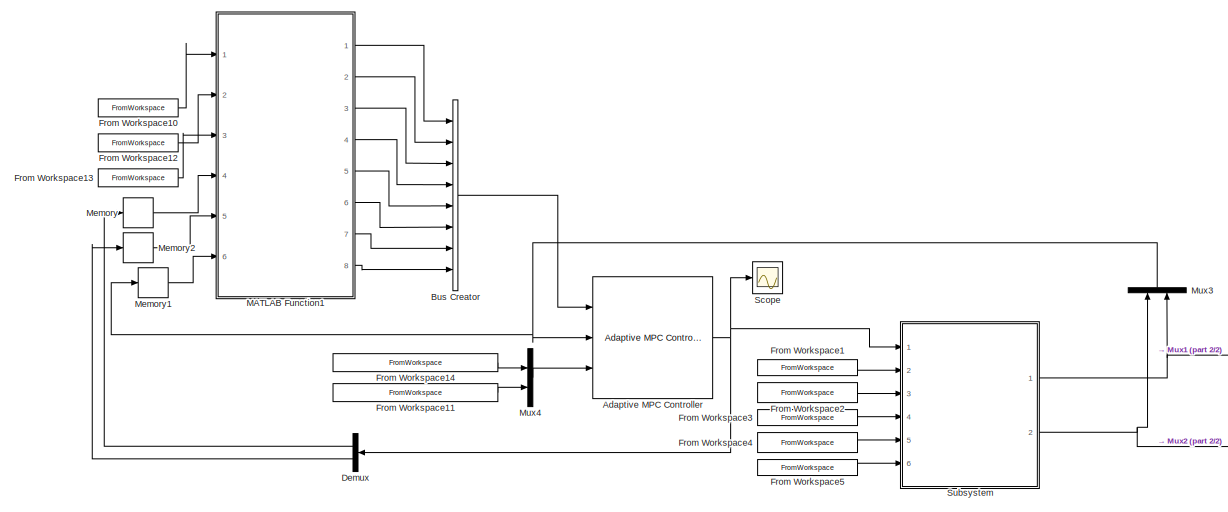
[diagram: root canvas - part 1/2, most of the canvas]
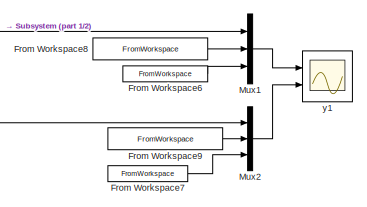
[diagram: root canvas - part 2/2, bottom right region]
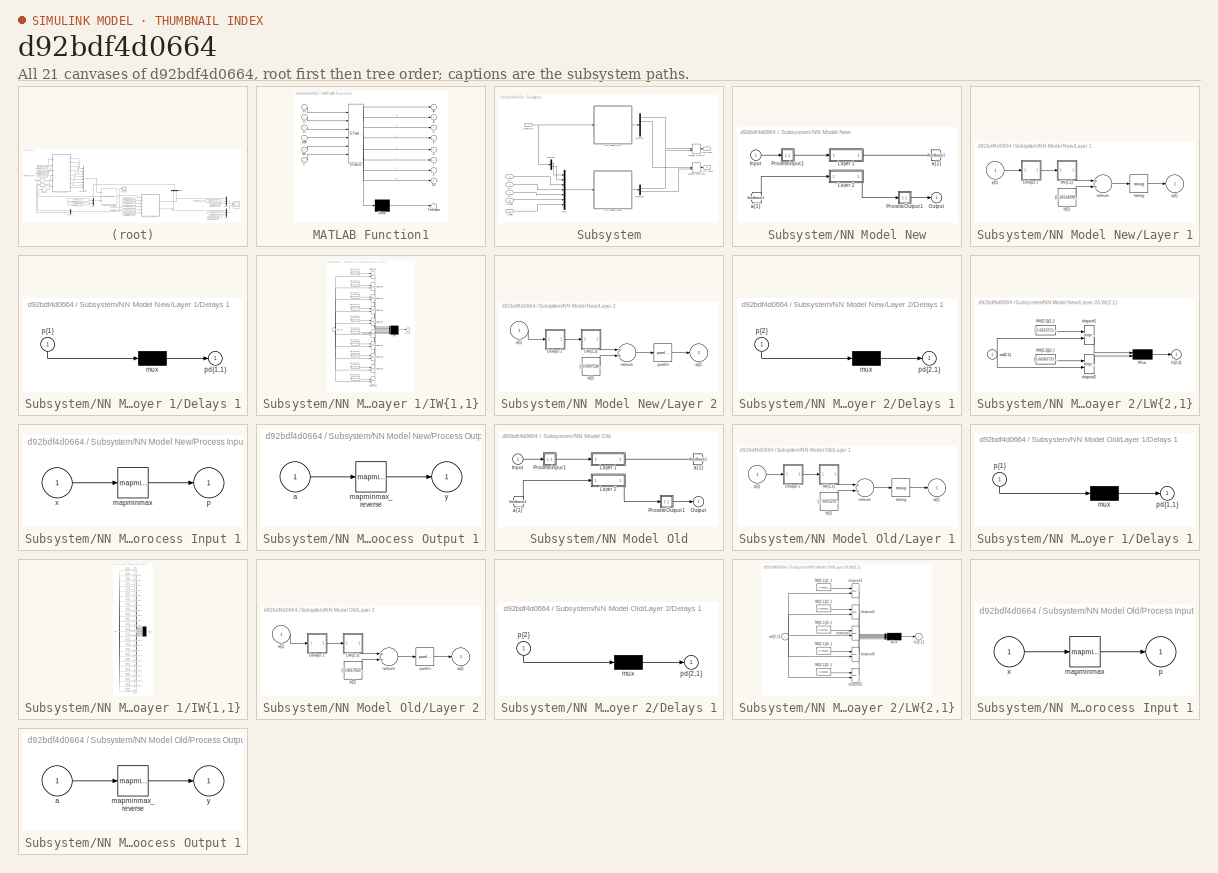
[diagram: thumbnail index - all 21 canvases of the model, root first then tree order]
MODEL slx_d92bdf4d0664
KIND model
CONFIG AbsTol = auto
CONFIG EnableMultiTasking = off
CONFIG FixedStep = Time(2)
CONFIG MaxStep = auto
CONFIG MinStep = auto
CONFIG RelTol = 1e-3
CONFIG SampleTimeConstraint = Unconstrained
CONFIG Solver = FixedStepAuto
CONFIG SolverName = FixedStepAuto
CONFIG StartTime = 0.0
CONFIG StopTime = Time(end)
BLOCK [Reference] Adaptive MPC Controller  REF=mpclib/Adaptive MPC Controller  (lib defined in mdl_ae329e0e0455)
  Ports = [3, 1]
  SCDEnableBlockLinearizationSpecification = on
  SourceBlock = mpclib/Adaptive MPC Controller
  SourceProductBaseCode = MP
  SourceProductName = Model Predictive Control Toolbox
  SourceType = Adaptive MPC
BLOCK [BusCreator] Bus Creator
  DisplayOption = bar
  InheritFromInputs = on
  Inputs = 8
  Ports = [8, 1]
BLOCK [Demux] Demux
  DisplayOption = bar
  Outputs = 2
  Ports = [1, 2]
BLOCK [FromWorkspace] From Workspace1
  SampleTime = 0
  VariableName = [Time Vx]
  ZeroCross = on
BLOCK [FromWorkspace] From Workspace10
  SampleTime = 0
  VariableName = [Time Vx]
  ZeroCross = on
BLOCK [FromWorkspace] From Workspace11
  SampleTime = 0
  VariableName = [Time YawRateRef_Filtered]
  ZeroCross = on
BLOCK [FromWorkspace] From Workspace12
  SampleTime = 0
  VariableName = [Time mean_Cf_fit]
  ZeroCross = on
BLOCK [FromWorkspace] From Workspace13
  SampleTime = 0
  VariableName = [Time mean_Cr_fit]
  ZeroCross = on
BLOCK [FromWorkspace] From Workspace14
  SampleTime = 0
  VariableName = [Time BetaRef_Filtered]
  ZeroCross = on
BLOCK [FromWorkspace] From Workspace2
  SampleTime = 0
  VariableName = [Time Fyf]
  ZeroCross = on
BLOCK [FromWorkspace] From Workspace3
  SampleTime = 0
  VariableName = [Time Fyr]
  ZeroCross = on
BLOCK [FromWorkspace] From Workspace4
  SampleTime = 0
  VariableName = [Time Alphaf]
  ZeroCross = on
BLOCK [FromWorkspace] From Workspace5
  SampleTime = 0
  VariableName = [Time Alphar]
  ZeroCross = on
BLOCK [FromWorkspace] From Workspace6
  SampleTime = 0
  VariableName = [Time YawR]
  ZeroCross = on
BLOCK [FromWorkspace] From Workspace7
  SampleTime = 0
  VariableName = [Time Beta]
  ZeroCross = on
BLOCK [FromWorkspace] From Workspace8
  SampleTime = 0
  VariableName = [Time YawRateRef_Filtered]
  ZeroCross = on
BLOCK [FromWorkspace] From Workspace9
  SampleTime = 0
  VariableName = [Time BetaRef_Filtered]
  ZeroCross = on
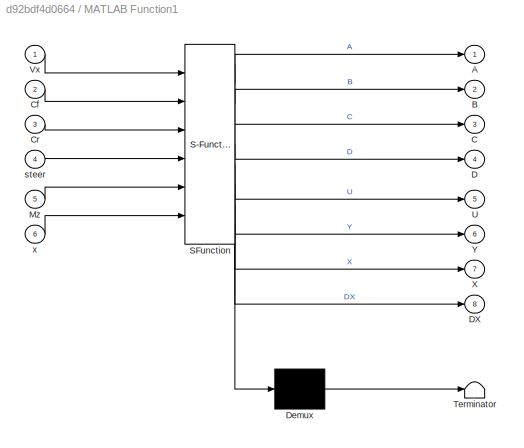
BLOCK [SubSystem] MATLAB Function1
  ErrorFcn = Stateflow.Translate.translate
  PermitHierarchicalResolution = ExplicitOnly
  Ports = [6, 8]
  RequestExecContextInheritance = off
  SFBlockType = MATLAB Function
  TreatAsAtomicUnit = on
BLOCK [Demux] MATLAB Function1/ Demux 
  Outputs = 1
  Ports = [1, 1]
BLOCK [S-Function] MATLAB Function1/ SFunction 
  EnableBusSupport = on
  FunctionName = sf_sfun
  PortCounts = [6 9]
  Ports = [6, 9]
  SFcnIsStateOwnerBlock = off
  SFunctionDeploymentMode = off
  Tag = Stateflow S-Function 2
BLOCK [Terminator] MATLAB Function1/ Terminator 
BLOCK [Outport] MATLAB Function1/A
  IconDisplay = Port number
  VectorParamsAs1DForOutWhenUnconnected = off
BLOCK [Outport] MATLAB Function1/B
  IconDisplay = Port number
  Port = 2
  VectorParamsAs1DForOutWhenUnconnected = off
BLOCK [Outport] MATLAB Function1/C
  IconDisplay = Port number
  Port = 3
  VectorParamsAs1DForOutWhenUnconnected = off
BLOCK [Inport] MATLAB Function1/Cf
  IconDisplay = Port number
  Port = 2
BLOCK [Inport] MATLAB Function1/Cr
  IconDisplay = Port number
  Port = 3
BLOCK [Outport] MATLAB Function1/D
  IconDisplay = Port number
  Port = 4
  VectorParamsAs1DForOutWhenUnconnected = off
BLOCK [Outport] MATLAB Function1/DX
  IconDisplay = Port number
  Port = 8
  VectorParamsAs1DForOutWhenUnconnected = off
BLOCK [Inport] MATLAB Function1/Mz
  IconDisplay = Port number
  Port = 5
BLOCK [Outport] MATLAB Function1/U
  IconDisplay = Port number
  Port = 5
  VectorParamsAs1DForOutWhenUnconnected = off
BLOCK [Inport] MATLAB Function1/Vx
  IconDisplay = Port number
BLOCK [Outport] MATLAB Function1/X
  IconDisplay = Port number
  Port = 7
  VectorParamsAs1DForOutWhenUnconnected = off
BLOCK [Outport] MATLAB Function1/Y
  IconDisplay = Port number
  Port = 6
  VectorParamsAs1DForOutWhenUnconnected = off
BLOCK [Inport] MATLAB Function1/steer
  IconDisplay = Port number
  Port = 4
BLOCK [Inport] MATLAB Function1/x
  IconDisplay = Port number
  Port = 6
BLOCK [Memory] Memory
BLOCK [Memory] Memory1
BLOCK [Memory] Memory2
BLOCK [Mux] Mux1
  DisplayOption = bar
  Inputs = 3
  Ports = [3, 1]
BLOCK [Mux] Mux2
  DisplayOption = bar
  Inputs = 3
  Ports = [3, 1]
BLOCK [Mux] Mux3
  DisplayOption = bar
  Inputs = 2
  Ports = [2, 1]
BLOCK [Mux] Mux4
  DisplayOption = bar
  Inputs = 2
  Ports = [2, 1]
BLOCK [Scope] Scope
  Floating = off
  NumInputPorts = 1
  Ports = [1]
  ScopeSpecificationString = Simulink.scopes.TimeScopeBlockCfg('CurrentConfiguration', extmgr.ConfigurationSet(extmgr.Configuration('Core','General UI',true),extmgr.Configuration('Core','Source UI',true),extmgr.Configuration('Sources','WiredSimulink',true,'DataLoggingVariableName','ScopeData1'),extmgr.Configuration('Visuals','Time Domain',true,'SerializedDisplays',{struct('MinYLimReal','-0.48048','MaxYLimReal','0.6308','YLabe...<+1430ch>
BLOCK [SubSystem] Subsystem
  Ports = [6, 2]
  RequestExecContextInheritance = off
BLOCK [Inport] Subsystem/Alphaf
  IconDisplay = Port number
  Port = 5
BLOCK [Inport] Subsystem/Alphar
  IconDisplay = Port number
  Port = 6
BLOCK [Demux] Subsystem/Demux
  DisplayOption = bar
  Outputs = 5
  Ports = [1, 5]
BLOCK [Demux] Subsystem/Demux1
  DisplayOption = bar
  Outputs = 2
  Ports = [1, 2]
BLOCK [Demux] Subsystem/Demux2
  DisplayOption = bar
  Outputs = 2
  Ports = [1, 2]
BLOCK [Inport] Subsystem/Fyf
  IconDisplay = Port number
  Port = 3
BLOCK [Inport] Subsystem/Fyr
  IconDisplay = Port number
  Port = 4
BLOCK [ManualSwitch] Subsystem/Manual Switch
BLOCK [ManualSwitch] Subsystem/Manual Switch1
BLOCK [Mux] Subsystem/Mux
  DisplayOption = bar
  Inputs = 7
  Ports = [7, 1]
BLOCK [SubSystem] Subsystem/NN Model New
  Ports = [1, 1]
  RequestExecContextInheritance = off
BLOCK [From] Subsystem/NN Model New/ a{1} 
  GotoTag = feedback1
BLOCK [Inport] Subsystem/NN Model New/Input
  IconDisplay = Port number
  PortDimensions = 7
BLOCK [SubSystem] Subsystem/NN Model New/Layer 1
  Ports = [1, 1]
  RequestExecContextInheritance = off
BLOCK [SubSystem] Subsystem/NN Model New/Layer 1/Delays 1
  Ports = [1, 1]
  RequestExecContextInheritance = off
BLOCK [Mux] Subsystem/NN Model New/Layer 1/Delays 1/mux
  Inputs = 1
  Ports = [1, 1]
BLOCK [Outport] Subsystem/NN Model New/Layer 1/Delays 1/pd{1,1}
  IconDisplay = Port number
BLOCK [Inport] Subsystem/NN Model New/Layer 1/Delays 1/p{1}
  IconDisplay = Port number
  PortDimensions = 7
BLOCK [SubSystem] Subsystem/NN Model New/Layer 1/IW{1,1}
  Ports = [1, 1]
  RequestExecContextInheritance = off
BLOCK [Constant] Subsystem/NN Model New/Layer 1/IW{1,1}/IW{1,1}(1,:)'
  Value = [0.57875178995764076095298378277220763266086578369140625;-0.65630868334226721838575713263708166778087615966796875;-1.2994685582603595630502013591467402875423431396484375;3.87704318068960152032786936615593731403350830078125;-0.5547300482773509511247311820625327527523040771484375;-0.87913700827856866570897409474127925932407379150390625;2.057844422784890436872728969319723546504974365234375]
BLOCK [Constant] Subsystem/NN Model New/Layer 1/IW{1,1}/IW{1,1}(10,:)'
  Value = [2.915197746859177652112293799291364848613739013671875;0.74173008508364646207411396972020156681537628173828125;0.28518025943380720388375948459724895656108856201171875;-0.36735078620961869599881310932687483727931976318359375;-0.69412743396490139691223930640262551605701446533203125;3.549207085727584143342028255574405193328857421875;-0.79018694164812608438097640828345902264118194580078125]
BLOCK [Constant] Subsystem/NN Model New/Layer 1/IW{1,1}/IW{1,1}(2,:)'
  Value = [-4.27333180748482188704429063363932073116302490234375;-0.844574968020410654645502290804870426654815673828125;-0.401099897634301816307100807534880004823207855224609375;0.388871861243340555258640733882202766835689544677734375;0.8075942119173777911100842175073921680450439453125;-5.55213609546480757472863842849619686603546142578125;1.8352382830919988787599095303448848426342010498046875]
BLOCK [Constant] Subsystem/NN Model New/Layer 1/IW{1,1}/IW{1,1}(3,:)'
  Value = [-0.252728931976545390103439103768323548138141632080078125;-2.296269227869625506599504660698585212230682373046875;1.3818309950099589844541014826972968876361846923828125;-1.7894777478048331520454894416616298258304595947265625;2.772225457176373364376331664971075952053070068359375;-1.30194180523479285938037719461135566234588623046875;-1.8582294302470836466767423189594410359859466552734375]
BLOCK [Constant] Subsystem/NN Model New/Layer 1/IW{1,1}/IW{1,1}(4,:)'
  Value = [0.003943734788484923141360649623265999252907931804656982421875;-0.09948304740510270638420564637272036634385585784912109375;0.1385985115972757364399825519285514019429683685302734375;-0.370575962454542440216442855671630240976810455322265625;0.16793236865429495008328331095981411635875701904296875;-0.0178347555979887807675599020740264677442610263824462890625;-0.586265378292065486576234434323851019144...<+14ch>
BLOCK [Constant] Subsystem/NN Model New/Layer 1/IW{1,1}/IW{1,1}(5,:)'
  Value = [-0.333572004754119133540513075786293484270572662353515625;0.10537472276525884640197006092421361245214939117431640625;-0.09307081210022806472270673339153290726244449615478515625;0.3526557857481564806079177287756465375423431396484375;-0.194320487847779055368135914250160567462444305419921875;-0.48890719831174844767218701235833577811717987060546875;0.13600826737891319462292472053377423435449600219726...<+5ch>
BLOCK [Constant] Subsystem/NN Model New/Layer 1/IW{1,1}/IW{1,1}(6,:)'
  Value = [-1.11647991296482107514975723461247980594635009765625;-0.08032287663896238438798746983593446202576160430908203125;0.5148581113880765780521642227540723979473114013671875;-0.00185679249259250596891523965581427546567283570766448974609375;0.0907984791278646508061456188443116843700408935546875;-1.6210522982891111265502104288316331803798675537109375;0.891231200746553153813067638111533597111701965332031...<+3ch>
BLOCK [Constant] Subsystem/NN Model New/Layer 1/IW{1,1}/IW{1,1}(7,:)'
  Value = [0.74344765048595229384176263920380733907222747802734375;-0.06354036189715682458878376337452209554612636566162109375;0.60780706129761197242800108142546378076076507568359375;0.0744083165700281934373805370341870002448558807373046875;-0.007047693513280267087195429809298730106092989444732666015625;1.28197860459582724246274665347300469875335693359375;-0.9577871594165492385997140445397235453128814697265...<+4ch>
BLOCK [Constant] Subsystem/NN Model New/Layer 1/IW{1,1}/IW{1,1}(8,:)'
  Value = [-0.268834658866021258827316842143773101270198822021484375;0.0563209258265555678946157058817334473133087158203125;0.09632954181942070259747623595103505067527294158935546875;0.111311757265155131246814335099770687520503997802734375;-0.138966451382288636029471717847627587616443634033203125;-0.39893491452245566364354090183041989803314208984375;-0.57581612654112357407854005941771902143955230712890625]
BLOCK [Constant] Subsystem/NN Model New/Layer 1/IW{1,1}/IW{1,1}(9,:)'
  Value = [0.307362014685282847192837607508408837020397186279296875;-0.271858509060633135590023812255822122097015380859375;-1.0698258344833180277788642342784442007541656494140625;-0.453602785951677744957777349554817192256450653076171875;0.48595721493864996176625936641357839107513427734375;0.42369293339924052332889914396218955516815185546875;0.591421321816716361041699201450683176517486572265625]
BLOCK [Mux] Subsystem/NN Model New/Layer 1/IW{1,1}/Mux
  Inputs = 10
  Ports = [10, 1]
BLOCK [Reference] Subsystem/NN Model New/Layer 1/IW{1,1}/dotprod1  REF=neural/Weight Functions/dotprod
  Ports = [2, 1]
  SourceBlock = neural/Weight Functions/dotprod
  SourceProductBaseCode = NN
  SourceProductName = Deep Learning Toolbox
  SourceType = DOTPROD
BLOCK [Reference] Subsystem/NN Model New/Layer 1/IW{1,1}/dotprod10  REF=neural/Weight Functions/dotprod
  Ports = [2, 1]
  SourceBlock = neural/Weight Functions/dotprod
  SourceProductBaseCode = NN
  SourceProductName = Deep Learning Toolbox
  SourceType = DOTPROD
BLOCK [Reference] Subsystem/NN Model New/Layer 1/IW{1,1}/dotprod2  REF=neural/Weight Functions/dotprod
  Ports = [2, 1]
  SourceBlock = neural/Weight Functions/dotprod
  SourceProductBaseCode = NN
  SourceProductName = Deep Learning Toolbox
  SourceType = DOTPROD
BLOCK [Reference] Subsystem/NN Model New/Layer 1/IW{1,1}/dotprod3  REF=neural/Weight Functions/dotprod
  Ports = [2, 1]
  SourceBlock = neural/Weight Functions/dotprod
  SourceProductBaseCode = NN
  SourceProductName = Deep Learning Toolbox
  SourceType = DOTPROD
BLOCK [Reference] Subsystem/NN Model New/Layer 1/IW{1,1}/dotprod4  REF=neural/Weight Functions/dotprod
  Ports = [2, 1]
  SourceBlock = neural/Weight Functions/dotprod
  SourceProductBaseCode = NN
  SourceProductName = Deep Learning Toolbox
  SourceType = DOTPROD
BLOCK [Reference] Subsystem/NN Model New/Layer 1/IW{1,1}/dotprod5  REF=neural/Weight Functions/dotprod
  Ports = [2, 1]
  SourceBlock = neural/Weight Functions/dotprod
  SourceProductBaseCode = NN
  SourceProductName = Deep Learning Toolbox
  SourceType = DOTPROD
BLOCK [Reference] Subsystem/NN Model New/Layer 1/IW{1,1}/dotprod6  REF=neural/Weight Functions/dotprod
  Ports = [2, 1]
  SourceBlock = neural/Weight Functions/dotprod
  SourceProductBaseCode = NN
  SourceProductName = Deep Learning Toolbox
  SourceType = DOTPROD
BLOCK [Reference] Subsystem/NN Model New/Layer 1/IW{1,1}/dotprod7  REF=neural/Weight Functions/dotprod
  Ports = [2, 1]
  SourceBlock = neural/Weight Functions/dotprod
  SourceProductBaseCode = NN
  SourceProductName = Deep Learning Toolbox
  SourceType = DOTPROD
BLOCK [Reference] Subsystem/NN Model New/Layer 1/IW{1,1}/dotprod8  REF=neural/Weight Functions/dotprod
  Ports = [2, 1]
  SourceBlock = neural/Weight Functions/dotprod
  SourceProductBaseCode = NN
  SourceProductName = Deep Learning Toolbox
  SourceType = DOTPROD
BLOCK [Reference] Subsystem/NN Model New/Layer 1/IW{1,1}/dotprod9  REF=neural/Weight Functions/dotprod
  Ports = [2, 1]
  SourceBlock = neural/Weight Functions/dotprod
  SourceProductBaseCode = NN
  SourceProductName = Deep Learning Toolbox
  SourceType = DOTPROD
BLOCK [Outport] Subsystem/NN Model New/Layer 1/IW{1,1}/iz{1,1}
  IconDisplay = Port number
BLOCK [Inport] Subsystem/NN Model New/Layer 1/IW{1,1}/pd{1,1}
  IconDisplay = Port number
  PortDimensions = 7
BLOCK [Outport] Subsystem/NN Model New/Layer 1/a{1}
  IconDisplay = Port number
  InitialOutput = [0;0;0;0;0;0;0;0;0;0]
BLOCK [Constant] Subsystem/NN Model New/Layer 1/b{1}
  Value = [5.2411429934668323227242581197060644626617431640625;-2.22805099212089441351736240903846919536590576171875;-2.679672009007010746728383310255594551563262939453125;-0.06085672148703126504987181988326483406126499176025390625;-0.03209909374305679186090145549314911477267742156982421875;-0.895472082646920686244129683473147451877593994140625;-0.54096648038043293471588413012796081602573394775390625;-0.107...<+162ch>
BLOCK [Sum] Subsystem/NN Model New/Layer 1/netsum
  Inputs = 2
  Ports = [2, 1]
BLOCK [Inport] Subsystem/NN Model New/Layer 1/p{1}
  IconDisplay = Port number
  PortDimensions = 7
BLOCK [Reference] Subsystem/NN Model New/Layer 1/tansig  REF=neural/Transfer Functions/tansig
  Ports = [1, 1]
  SourceBlock = neural/Transfer Functions/tansig
  SourceProductBaseCode = NN
  SourceProductName = Deep Learning Toolbox
  SourceType = TANSIG
BLOCK [SubSystem] Subsystem/NN Model New/Layer 2
  Ports = [1, 1]
  RequestExecContextInheritance = off
BLOCK [SubSystem] Subsystem/NN Model New/Layer 2/Delays 1
  Ports = [1, 1]
  RequestExecContextInheritance = off
BLOCK [Mux] Subsystem/NN Model New/Layer 2/Delays 1/mux
  Inputs = 1
  Ports = [1, 1]
BLOCK [Outport] Subsystem/NN Model New/Layer 2/Delays 1/pd{2,1}
  IconDisplay = Port number
BLOCK [Inport] Subsystem/NN Model New/Layer 2/Delays 1/p{2}
  IconDisplay = Port number
  PortDimensions = 10
BLOCK [SubSystem] Subsystem/NN Model New/Layer 2/LW{2,1}
  Ports = [1, 1]
  RequestExecContextInheritance = off
BLOCK [Constant] Subsystem/NN Model New/Layer 2/LW{2,1}/IW{2,1}(1,:)'
  Value = [-0.6833753001482130162713701793109066784381866455078125;1.3635236094188762923096192025695927441120147705078125;0.057847009920795895709932921135987271554768085479736328125;4.80922386425912673502125471713952720165252685546875;5.77027276358332841255105449818074703216552734375;-6.09500856293694415199979630415327847003936767578125;5.4896404628750321563757097464986145496368408203125;-5.1779905137497577...<+146ch>
BLOCK [Constant] Subsystem/NN Model New/Layer 2/LW{2,1}/IW{2,1}(2,:)'
  Value = [0.043837336651869007742021722151548601686954498291015625;-0.047707449556589752448498842340995906852185726165771484375;-0.00170962961711332273560814964952214722870849072933197021484375;-2.421014160686501437425022231764160096645355224609375;-2.865267944351159723481714536319486796855926513671875;0.08418319192528189720547970864572562277317047119140625;-0.1176668747657824559693651167435746174305677413...<+185ch>
BLOCK [Mux] Subsystem/NN Model New/Layer 2/LW{2,1}/Mux
  Inputs = 2
  Ports = [2, 1]
BLOCK [Inport] Subsystem/NN Model New/Layer 2/LW{2,1}/ad{2,1}
  IconDisplay = Port number
  PortDimensions = 10
BLOCK [Reference] Subsystem/NN Model New/Layer 2/LW{2,1}/dotprod1  REF=neural/Weight Functions/dotprod
  Ports = [2, 1]
  SourceBlock = neural/Weight Functions/dotprod
  SourceProductBaseCode = NN
  SourceProductName = Deep Learning Toolbox
  SourceType = DOTPROD
BLOCK [Reference] Subsystem/NN Model New/Layer 2/LW{2,1}/dotprod2  REF=neural/Weight Functions/dotprod
  Ports = [2, 1]
  SourceBlock = neural/Weight Functions/dotprod
  SourceProductBaseCode = NN
  SourceProductName = Deep Learning Toolbox
  SourceType = DOTPROD
BLOCK [Outport] Subsystem/NN Model New/Layer 2/LW{2,1}/lz{2,1}
  IconDisplay = Port number
BLOCK [Inport] Subsystem/NN Model New/Layer 2/a{1} 
  IconDisplay = Port number
  PortDimensions = 10
BLOCK [Outport] Subsystem/NN Model New/Layer 2/a{2}
  IconDisplay = Port number
  InitialOutput = [0;0]
BLOCK [Constant] Subsystem/NN Model New/Layer 2/b{2}
  Value = [-0.03475348515759095480159857061153161339461803436279296875;0.01703892921834616880349955181372934021055698394775390625]
BLOCK [Sum] Subsystem/NN Model New/Layer 2/netsum
  Inputs = 2
  Ports = [2, 1]
BLOCK [Reference] Subsystem/NN Model New/Layer 2/purelin  REF=neural/Transfer Functions/purelin
  Ports = [1, 1]
  SourceBlock = neural/Transfer Functions/purelin
  SourceProductBaseCode = NN
  SourceProductName = Deep Learning Toolbox
  SourceType = PURELIN
BLOCK [Outport] Subsystem/NN Model New/Output
  IconDisplay = Port number
  InitialOutput = [0;0]
BLOCK [SubSystem] Subsystem/NN Model New/Process Input 1
  Ports = [1, 1]
  RequestExecContextInheritance = off
BLOCK [Reference] Subsystem/NN Model New/Process Input 1/mapminmax  REF=neural/Processing Functions/mapminmax
  Ports = [1, 1]
  SourceBlock = neural/Processing Functions/mapminmax
  SourceProductBaseCode = NN
  SourceProductName = Deep Learning Toolbox
  SourceType = MAPMINMAX Preprocess
BLOCK [Outport] Subsystem/NN Model New/Process Input 1/p
  IconDisplay = Port number
  PortDimensions = 7
BLOCK [Inport] Subsystem/NN Model New/Process Input 1/x
  IconDisplay = Port number
  PortDimensions = 7
BLOCK [SubSystem] Subsystem/NN Model New/Process Output 1
  Ports = [1, 1]
  RequestExecContextInheritance = off
BLOCK [Inport] Subsystem/NN Model New/Process Output 1/a
  IconDisplay = Port number
  PortDimensions = 2
BLOCK [Reference] Subsystem/NN Model New/Process Output 1/mapminmax_reverse  REF=neural/Processing Functions/mapminmax_reverse
  Ports = [1, 1]
  SourceBlock = neural/Processing Functions/mapminmax_reverse
  SourceProductBaseCode = NN
  SourceProductName = Deep Learning Toolbox
  SourceType = MAPMINMAX Reverse Process
BLOCK [Outport] Subsystem/NN Model New/Process Output 1/y
  IconDisplay = Port number
  PortDimensions = 2
BLOCK [Goto] Subsystem/NN Model New/a{1}
  GotoTag = feedback1
BLOCK [SubSystem] Subsystem/NN Model Old
  Ports = [1, 1]
  RequestExecContextInheritance = off
BLOCK [From] Subsystem/NN Model Old/ a{1} 
  GotoTag = feedback1
BLOCK [Inport] Subsystem/NN Model Old/Input
  IconDisplay = Port number
  PortDimensions = 2
BLOCK [SubSystem] Subsystem/NN Model Old/Layer 1
  Ports = [1, 1]
  RequestExecContextInheritance = off
BLOCK [SubSystem] Subsystem/NN Model Old/Layer 1/Delays 1
  Ports = [1, 1]
  RequestExecContextInheritance = off
BLOCK [Mux] Subsystem/NN Model Old/Layer 1/Delays 1/mux
  Inputs = 1
  Ports = [1, 1]
BLOCK [Outport] Subsystem/NN Model Old/Layer 1/Delays 1/pd{1,1}
  IconDisplay = Port number
BLOCK [Inport] Subsystem/NN Model Old/Layer 1/Delays 1/p{1}
  IconDisplay = Port number
  PortDimensions = 2
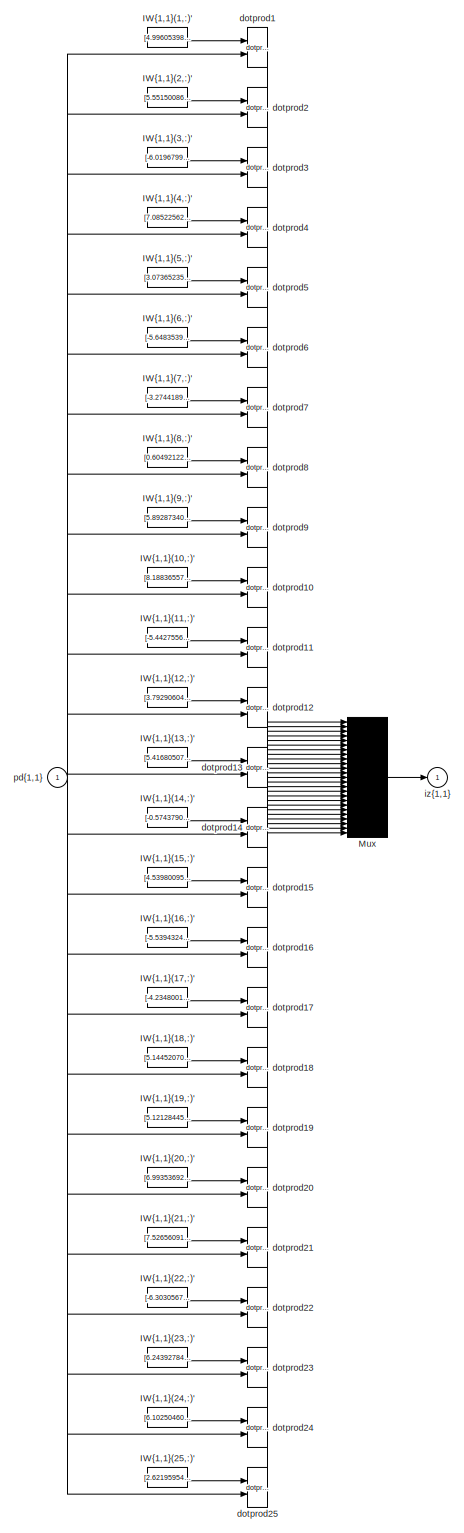
[diagram: Subsystem/NN Model Old/Layer 1/IW{1,1} - part 1/1, most of the canvas]
BLOCK [SubSystem] Subsystem/NN Model Old/Layer 1/IW{1,1}
  Ports = [1, 1]
  RequestExecContextInheritance = off
BLOCK [Constant] Subsystem/NN Model Old/Layer 1/IW{1,1}/IW{1,1}(1,:)'
  Value = [4.996053988368071685499671730212867259979248046875;4.145420661992755384517295169644057750701904296875]
BLOCK [Constant] Subsystem/NN Model Old/Layer 1/IW{1,1}/IW{1,1}(10,:)'
  Value = [8.188365570810294258308204007335007190704345703125;-2.409695227788061000495645203045569360256195068359375]
BLOCK [Constant] Subsystem/NN Model Old/Layer 1/IW{1,1}/IW{1,1}(11,:)'
  Value = [-5.44275560453445717001841330784372985363006591796875;4.6210999722036749659537235856987535953521728515625]
BLOCK [Constant] Subsystem/NN Model Old/Layer 1/IW{1,1}/IW{1,1}(12,:)'
  Value = [3.792906040927508382054611502098850905895233154296875;5.41023104363073148448393112630583345890045166015625]
BLOCK [Constant] Subsystem/NN Model Old/Layer 1/IW{1,1}/IW{1,1}(13,:)'
  Value = [5.416805075886014009256541612558066844940185546875;-0.8189647585865877932320699983392842113971710205078125]
BLOCK [Constant] Subsystem/NN Model Old/Layer 1/IW{1,1}/IW{1,1}(14,:)'
  Value = [-0.57437906437598351683249120469554327428340911865234375;6.4599590475109085474514358793385326862335205078125]
BLOCK [Constant] Subsystem/NN Model Old/Layer 1/IW{1,1}/IW{1,1}(15,:)'
  Value = [4.53980095887533163789839818491600453853607177734375;-4.45479863089978511681010786560364067554473876953125]
BLOCK [Constant] Subsystem/NN Model Old/Layer 1/IW{1,1}/IW{1,1}(16,:)'
  Value = [-5.53943245901380709739214580622501671314239501953125;-1.8765098279659522262363680056296288967132568359375]
BLOCK [Constant] Subsystem/NN Model Old/Layer 1/IW{1,1}/IW{1,1}(17,:)'
  Value = [-4.23480018400868818417848160606808960437774658203125;-5.3802196894214073807916065561585128307342529296875]
BLOCK [Constant] Subsystem/NN Model Old/Layer 1/IW{1,1}/IW{1,1}(18,:)'
  Value = [5.14452070878791456465251030749641358852386474609375;2.89378943224349516327720266417600214481353759765625]
BLOCK [Constant] Subsystem/NN Model Old/Layer 1/IW{1,1}/IW{1,1}(19,:)'
  Value = [5.1212844519854261449154364527203142642974853515625;5.17323871498760734510824477183632552623748779296875]
BLOCK [Constant] Subsystem/NN Model Old/Layer 1/IW{1,1}/IW{1,1}(2,:)'
  Value = [5.551500868008591993429945432581007480621337890625;3.133051460530499543466476097819395363330841064453125]
BLOCK [Constant] Subsystem/NN Model Old/Layer 1/IW{1,1}/IW{1,1}(20,:)'
  Value = [6.993536928580141420752624981105327606201171875;-3.260033407146683881450144326663576066493988037109375]
BLOCK [Constant] Subsystem/NN Model Old/Layer 1/IW{1,1}/IW{1,1}(21,:)'
  Value = [7.5265609134668363111586586455814540386199951171875;0.29540877351377670123611096641980111598968505859375]
BLOCK [Constant] Subsystem/NN Model Old/Layer 1/IW{1,1}/IW{1,1}(22,:)'
  Value = [-6.30305673694603374457301470101810991764068603515625;-0.8171607153727364902806584723293781280517578125]
BLOCK [Constant] Subsystem/NN Model Old/Layer 1/IW{1,1}/IW{1,1}(23,:)'
  Value = [6.24392784242004861283703576191328465938568115234375;1.6699860577824237051203226656070910394191741943359375]
BLOCK [Constant] Subsystem/NN Model Old/Layer 1/IW{1,1}/IW{1,1}(24,:)'
  Value = [6.1025046068999824200318471412174403667449951171875;2.47739386931625205079399165697395801544189453125]
BLOCK [Constant] Subsystem/NN Model Old/Layer 1/IW{1,1}/IW{1,1}(25,:)'
  Value = [2.621959544782504369919706732616759836673736572265625;5.01583836917054615156530417152680456638336181640625]
BLOCK [Constant] Subsystem/NN Model Old/Layer 1/IW{1,1}/IW{1,1}(3,:)'
  Value = [-6.0196799470979129864645074121654033660888671875;-2.471339153734376292703700528363697230815887451171875]
BLOCK [Constant] Subsystem/NN Model Old/Layer 1/IW{1,1}/IW{1,1}(4,:)'
  Value = [7.08522562572618941345581333735026419162750244140625;1.9863962476412424518201760292868129909038543701171875]
BLOCK [Constant] Subsystem/NN Model Old/Layer 1/IW{1,1}/IW{1,1}(5,:)'
  Value = [3.073652356561554110925271743326447904109954833984375;-5.417080363860208080950542353093624114990234375]
BLOCK [Constant] Subsystem/NN Model Old/Layer 1/IW{1,1}/IW{1,1}(6,:)'
  Value = [-5.64835399104979529738557175733149051666259765625;4.04429213445521984482411426142789423465728759765625]
BLOCK [Constant] Subsystem/NN Model Old/Layer 1/IW{1,1}/IW{1,1}(7,:)'
  Value = [-3.274418974235211887702234889729879796504974365234375;-6.908756771193765189309488050639629364013671875]
BLOCK [Constant] Subsystem/NN Model Old/Layer 1/IW{1,1}/IW{1,1}(8,:)'
  Value = [0.60492122327601549613973475061357021331787109375;-6.23918715065932527608083546510897576808929443359375]
BLOCK [Constant] Subsystem/NN Model Old/Layer 1/IW{1,1}/IW{1,1}(9,:)'
  Value = [5.89287340047747942861633418942801654338836669921875;-3.264426106743424593759073104592971503734588623046875]
BLOCK [Mux] Subsystem/NN Model Old/Layer 1/IW{1,1}/Mux
  Inputs = 25
  Ports = [25, 1]
BLOCK [Reference] Subsystem/NN Model Old/Layer 1/IW{1,1}/dotprod1  REF=neural/Weight Functions/dotprod
  Ports = [2, 1]
  SourceBlock = neural/Weight Functions/dotprod
  SourceProductBaseCode = NN
  SourceProductName = Deep Learning Toolbox
  SourceType = DOTPROD
BLOCK [Reference] Subsystem/NN Model Old/Layer 1/IW{1,1}/dotprod10  REF=neural/Weight Functions/dotprod
  Ports = [2, 1]
  SourceBlock = neural/Weight Functions/dotprod
  SourceProductBaseCode = NN
  SourceProductName = Deep Learning Toolbox
  SourceType = DOTPROD
BLOCK [Reference] Subsystem/NN Model Old/Layer 1/IW{1,1}/dotprod11  REF=neural/Weight Functions/dotprod
  Ports = [2, 1]
  SourceBlock = neural/Weight Functions/dotprod
  SourceProductBaseCode = NN
  SourceProductName = Deep Learning Toolbox
  SourceType = DOTPROD
BLOCK [Reference] Subsystem/NN Model Old/Layer 1/IW{1,1}/dotprod12  REF=neural/Weight Functions/dotprod
  Ports = [2, 1]
  SourceBlock = neural/Weight Functions/dotprod
  SourceProductBaseCode = NN
  SourceProductName = Deep Learning Toolbox
  SourceType = DOTPROD
BLOCK [Reference] Subsystem/NN Model Old/Layer 1/IW{1,1}/dotprod13  REF=neural/Weight Functions/dotprod
  Ports = [2, 1]
  SourceBlock = neural/Weight Functions/dotprod
  SourceProductBaseCode = NN
  SourceProductName = Deep Learning Toolbox
  SourceType = DOTPROD
BLOCK [Reference] Subsystem/NN Model Old/Layer 1/IW{1,1}/dotprod14  REF=neural/Weight Functions/dotprod
  Ports = [2, 1]
  SourceBlock = neural/Weight Functions/dotprod
  SourceProductBaseCode = NN
  SourceProductName = Deep Learning Toolbox
  SourceType = DOTPROD
BLOCK [Reference] Subsystem/NN Model Old/Layer 1/IW{1,1}/dotprod15  REF=neural/Weight Functions/dotprod
  Ports = [2, 1]
  SourceBlock = neural/Weight Functions/dotprod
  SourceProductBaseCode = NN
  SourceProductName = Deep Learning Toolbox
  SourceType = DOTPROD
BLOCK [Reference] Subsystem/NN Model Old/Layer 1/IW{1,1}/dotprod16  REF=neural/Weight Functions/dotprod
  Ports = [2, 1]
  SourceBlock = neural/Weight Functions/dotprod
  SourceProductBaseCode = NN
  SourceProductName = Deep Learning Toolbox
  SourceType = DOTPROD
BLOCK [Reference] Subsystem/NN Model Old/Layer 1/IW{1,1}/dotprod17  REF=neural/Weight Functions/dotprod
  Ports = [2, 1]
  SourceBlock = neural/Weight Functions/dotprod
  SourceProductBaseCode = NN
  SourceProductName = Deep Learning Toolbox
  SourceType = DOTPROD
BLOCK [Reference] Subsystem/NN Model Old/Layer 1/IW{1,1}/dotprod18  REF=neural/Weight Functions/dotprod
  Ports = [2, 1]
  SourceBlock = neural/Weight Functions/dotprod
  SourceProductBaseCode = NN
  SourceProductName = Deep Learning Toolbox
  SourceType = DOTPROD
BLOCK [Reference] Subsystem/NN Model Old/Layer 1/IW{1,1}/dotprod19  REF=neural/Weight Functions/dotprod
  Ports = [2, 1]
  SourceBlock = neural/Weight Functions/dotprod
  SourceProductBaseCode = NN
  SourceProductName = Deep Learning Toolbox
  SourceType = DOTPROD
BLOCK [Reference] Subsystem/NN Model Old/Layer 1/IW{1,1}/dotprod2  REF=neural/Weight Functions/dotprod
  Ports = [2, 1]
  SourceBlock = neural/Weight Functions/dotprod
  SourceProductBaseCode = NN
  SourceProductName = Deep Learning Toolbox
  SourceType = DOTPROD
BLOCK [Reference] Subsystem/NN Model Old/Layer 1/IW{1,1}/dotprod20  REF=neural/Weight Functions/dotprod
  Ports = [2, 1]
  SourceBlock = neural/Weight Functions/dotprod
  SourceProductBaseCode = NN
  SourceProductName = Deep Learning Toolbox
  SourceType = DOTPROD
BLOCK [Reference] Subsystem/NN Model Old/Layer 1/IW{1,1}/dotprod21  REF=neural/Weight Functions/dotprod
  Ports = [2, 1]
  SourceBlock = neural/Weight Functions/dotprod
  SourceProductBaseCode = NN
  SourceProductName = Deep Learning Toolbox
  SourceType = DOTPROD
BLOCK [Reference] Subsystem/NN Model Old/Layer 1/IW{1,1}/dotprod22  REF=neural/Weight Functions/dotprod
  Ports = [2, 1]
  SourceBlock = neural/Weight Functions/dotprod
  SourceProductBaseCode = NN
  SourceProductName = Deep Learning Toolbox
  SourceType = DOTPROD
BLOCK [Reference] Subsystem/NN Model Old/Layer 1/IW{1,1}/dotprod23  REF=neural/Weight Functions/dotprod
  Ports = [2, 1]
  SourceBlock = neural/Weight Functions/dotprod
  SourceProductBaseCode = NN
  SourceProductName = Deep Learning Toolbox
  SourceType = DOTPROD
BLOCK [Reference] Subsystem/NN Model Old/Layer 1/IW{1,1}/dotprod24  REF=neural/Weight Functions/dotprod
  Ports = [2, 1]
  SourceBlock = neural/Weight Functions/dotprod
  SourceProductBaseCode = NN
  SourceProductName = Deep Learning Toolbox
  SourceType = DOTPROD
BLOCK [Reference] Subsystem/NN Model Old/Layer 1/IW{1,1}/dotprod25  REF=neural/Weight Functions/dotprod
  Ports = [2, 1]
  SourceBlock = neural/Weight Functions/dotprod
  SourceProductBaseCode = NN
  SourceProductName = Deep Learning Toolbox
  SourceType = DOTPROD
BLOCK [Reference] Subsystem/NN Model Old/Layer 1/IW{1,1}/dotprod3  REF=neural/Weight Functions/dotprod
  Ports = [2, 1]
  SourceBlock = neural/Weight Functions/dotprod
  SourceProductBaseCode = NN
  SourceProductName = Deep Learning Toolbox
  SourceType = DOTPROD
BLOCK [Reference] Subsystem/NN Model Old/Layer 1/IW{1,1}/dotprod4  REF=neural/Weight Functions/dotprod
  Ports = [2, 1]
  SourceBlock = neural/Weight Functions/dotprod
  SourceProductBaseCode = NN
  SourceProductName = Deep Learning Toolbox
  SourceType = DOTPROD
BLOCK [Reference] Subsystem/NN Model Old/Layer 1/IW{1,1}/dotprod5  REF=neural/Weight Functions/dotprod
  Ports = [2, 1]
  SourceBlock = neural/Weight Functions/dotprod
  SourceProductBaseCode = NN
  SourceProductName = Deep Learning Toolbox
  SourceType = DOTPROD
BLOCK [Reference] Subsystem/NN Model Old/Layer 1/IW{1,1}/dotprod6  REF=neural/Weight Functions/dotprod
  Ports = [2, 1]
  SourceBlock = neural/Weight Functions/dotprod
  SourceProductBaseCode = NN
  SourceProductName = Deep Learning Toolbox
  SourceType = DOTPROD
BLOCK [Reference] Subsystem/NN Model Old/Layer 1/IW{1,1}/dotprod7  REF=neural/Weight Functions/dotprod
  Ports = [2, 1]
  SourceBlock = neural/Weight Functions/dotprod
  SourceProductBaseCode = NN
  SourceProductName = Deep Learning Toolbox
  SourceType = DOTPROD
BLOCK [Reference] Subsystem/NN Model Old/Layer 1/IW{1,1}/dotprod8  REF=neural/Weight Functions/dotprod
  Ports = [2, 1]
  SourceBlock = neural/Weight Functions/dotprod
  SourceProductBaseCode = NN
  SourceProductName = Deep Learning Toolbox
  SourceType = DOTPROD
BLOCK [Reference] Subsystem/NN Model Old/Layer 1/IW{1,1}/dotprod9  REF=neural/Weight Functions/dotprod
  Ports = [2, 1]
  SourceBlock = neural/Weight Functions/dotprod
  SourceProductBaseCode = NN
  SourceProductName = Deep Learning Toolbox
  SourceType = DOTPROD
BLOCK [Outport] Subsystem/NN Model Old/Layer 1/IW{1,1}/iz{1,1}
  IconDisplay = Port number
BLOCK [Inport] Subsystem/NN Model Old/Layer 1/IW{1,1}/pd{1,1}
  IconDisplay = Port number
  PortDimensions = 2
BLOCK [Outport] Subsystem/NN Model Old/Layer 1/a{1}
  IconDisplay = Port number
  InitialOutput = [0;0;0;0;0;0;0;0;0;0;0;0;0;0;0;0;0;0;0;0;0;0;0;0;0]
BLOCK [Constant] Subsystem/NN Model Old/Layer 1/b{1}
  Value = [-7.6015237592253388498875210643745958805084228515625;-7.067621756907637831091051339171826839447021484375;6.131774083158564536688572843559086322784423828125;-4.41785899183922037281035954947583377361297607421875;-5.18050561901172290646400142577476799488067626953125;4.16237928554652825141602079384028911590576171875;3.958492862286602242960498188040219247341156005859375;-3.3094068459996921482968446071...<+946ch>
BLOCK [Sum] Subsystem/NN Model Old/Layer 1/netsum
  Inputs = 2
  Ports = [2, 1]
BLOCK [Inport] Subsystem/NN Model Old/Layer 1/p{1}
  IconDisplay = Port number
  PortDimensions = 2
BLOCK [Reference] Subsystem/NN Model Old/Layer 1/tansig  REF=neural/Transfer Functions/tansig
  Ports = [1, 1]
  SourceBlock = neural/Transfer Functions/tansig
  SourceProductBaseCode = NN
  SourceProductName = Deep Learning Toolbox
  SourceType = TANSIG
BLOCK [SubSystem] Subsystem/NN Model Old/Layer 2
  Ports = [1, 1]
  RequestExecContextInheritance = off
BLOCK [SubSystem] Subsystem/NN Model Old/Layer 2/Delays 1
  Ports = [1, 1]
  RequestExecContextInheritance = off
BLOCK [Mux] Subsystem/NN Model Old/Layer 2/Delays 1/mux
  Inputs = 1
  Ports = [1, 1]
BLOCK [Outport] Subsystem/NN Model Old/Layer 2/Delays 1/pd{2,1}
  IconDisplay = Port number
BLOCK [Inport] Subsystem/NN Model Old/Layer 2/Delays 1/p{2}
  IconDisplay = Port number
  PortDimensions = 25
BLOCK [SubSystem] Subsystem/NN Model Old/Layer 2/LW{2,1}
  Ports = [1, 1]
  RequestExecContextInheritance = off
BLOCK [Constant] Subsystem/NN Model Old/Layer 2/LW{2,1}/IW{2,1}(1,:)'
  Value = [-0.4482072015830997901986165743437595665454864501953125;-0.003528446238118335999411900871791658573783934116363525390625;0.50278547539266416066539022722281515598297119140625;0.91834133892285707556624174685566686093807220458984375;0.68125239921265834386332471694913692772388458251953125;-0.299859329362623439063639807500294409692287445068359375;-0.29643599585607710578116780197888147085905075073242187...<+1010ch>
BLOCK [Constant] Subsystem/NN Model Old/Layer 2/LW{2,1}/IW{2,1}(2,:)'
  Value = [0.359405151552364132694350473684608004987239837646484375;0.9194877185809442465824758983217179775238037109375;-0.48980958324230761125051003546104766428470611572265625;0.09443089900433694616754820572168682701885700225830078125;-0.491435778461312200438015906911459751427173614501953125;-0.60680941137994948153533414370031096041202545166015625;0.661657412334119232610873950761742889881134033203125;0.514...<+1012ch>
BLOCK [Constant] Subsystem/NN Model Old/Layer 2/LW{2,1}/IW{2,1}(3,:)'
  Value = [0.310178115867473069844351130086579360067844390869140625;-0.319246058351870198865896099960082210600376129150390625;0.0119323398285082864223038967566026258282363414764404296875;-0.72276861065263242611678151661180891096591949462890625;0.62854044674897091571352802930050529539585113525390625;-0.497798146323329138152047335097449831664562225341796875;0.17054496978963792908068342057958943769335746765136...<+1029ch>
BLOCK [Constant] Subsystem/NN Model Old/Layer 2/LW{2,1}/IW{2,1}(4,:)'
  Value = [-0.7981303168728139940668597773765213787555694580078125;0.2485837086215596791749504745894228108227252960205078125;0.055851556164851122454617637913543148897588253021240234375;-0.026283490399110286117601020805523148737847805023193359375;-0.00588301349287416452948917822141083888709545135498046875;0.1318166008634154007239658312755636870861053466796875;0.09055598797878289252238914741610642522573471069...<+1048ch>
BLOCK [Constant] Subsystem/NN Model Old/Layer 2/LW{2,1}/IW{2,1}(5,:)'
  Value = [-0.42639514289580782158139982129796408116817474365234375;0.2459582307106894794035412132870987989008426666259765625;0.32824797888202839057925075394450686872005462646484375;-0.393309954501700642648387429289869032800197601318359375;0.7741606150701032529326539588510058820247650146484375;-0.175883823063483879511892382652149535715579986572265625;0.1238928741617336404257088133817887865006923675537109375...<+1009ch>
BLOCK [Mux] Subsystem/NN Model Old/Layer 2/LW{2,1}/Mux
  Inputs = 5
  Ports = [5, 1]
BLOCK [Inport] Subsystem/NN Model Old/Layer 2/LW{2,1}/ad{2,1}
  IconDisplay = Port number
  PortDimensions = 25
BLOCK [Reference] Subsystem/NN Model Old/Layer 2/LW{2,1}/dotprod1  REF=neural/Weight Functions/dotprod
  Ports = [2, 1]
  SourceBlock = neural/Weight Functions/dotprod
  SourceProductBaseCode = NN
  SourceProductName = Deep Learning Toolbox
  SourceType = DOTPROD
BLOCK [Reference] Subsystem/NN Model Old/Layer 2/LW{2,1}/dotprod2  REF=neural/Weight Functions/dotprod
  Ports = [2, 1]
  SourceBlock = neural/Weight Functions/dotprod
  SourceProductBaseCode = NN
  SourceProductName = Deep Learning Toolbox
  SourceType = DOTPROD
BLOCK [Reference] Subsystem/NN Model Old/Layer 2/LW{2,1}/dotprod3  REF=neural/Weight Functions/dotprod
  Ports = [2, 1]
  SourceBlock = neural/Weight Functions/dotprod
  SourceProductBaseCode = NN
  SourceProductName = Deep Learning Toolbox
  SourceType = DOTPROD
BLOCK [Reference] Subsystem/NN Model Old/Layer 2/LW{2,1}/dotprod4  REF=neural/Weight Functions/dotprod
  Ports = [2, 1]
  SourceBlock = neural/Weight Functions/dotprod
  SourceProductBaseCode = NN
  SourceProductName = Deep Learning Toolbox
  SourceType = DOTPROD
BLOCK [Reference] Subsystem/NN Model Old/Layer 2/LW{2,1}/dotprod5  REF=neural/Weight Functions/dotprod
  Ports = [2, 1]
  SourceBlock = neural/Weight Functions/dotprod
  SourceProductBaseCode = NN
  SourceProductName = Deep Learning Toolbox
  SourceType = DOTPROD
BLOCK [Outport] Subsystem/NN Model Old/Layer 2/LW{2,1}/lz{2,1}
  IconDisplay = Port number
BLOCK [Inport] Subsystem/NN Model Old/Layer 2/a{1} 
  IconDisplay = Port number
  PortDimensions = 25
BLOCK [Outport] Subsystem/NN Model Old/Layer 2/a{2}
  IconDisplay = Port number
  InitialOutput = [0;0;0;0;0]
BLOCK [Constant] Subsystem/NN Model Old/Layer 2/b{2}
  Value = [-0.66176225356264140042839017041842453181743621826171875;0.298231153661451753311695256343227811157703399658203125;0.463462841939217995435029706641216762363910675048828125;0.44422125612375673586740276732598431408405303955078125;-0.036255787546502001028603245913473074324429035186767578125]
BLOCK [Sum] Subsystem/NN Model Old/Layer 2/netsum
  Inputs = 2
  Ports = [2, 1]
BLOCK [Reference] Subsystem/NN Model Old/Layer 2/purelin  REF=neural/Transfer Functions/purelin
  Ports = [1, 1]
  SourceBlock = neural/Transfer Functions/purelin
  SourceProductBaseCode = NN
  SourceProductName = Deep Learning Toolbox
  SourceType = PURELIN
BLOCK [Outport] Subsystem/NN Model Old/Output
  IconDisplay = Port number
  InitialOutput = [0;0;0;0;0]
BLOCK [SubSystem] Subsystem/NN Model Old/Process Input 1
  Ports = [1, 1]
  RequestExecContextInheritance = off
BLOCK [Reference] Subsystem/NN Model Old/Process Input 1/mapminmax  REF=neural/Processing Functions/mapminmax
  Ports = [1, 1]
  SourceBlock = neural/Processing Functions/mapminmax
  SourceProductBaseCode = NN
  SourceProductName = Deep Learning Toolbox
  SourceType = MAPMINMAX Preprocess
BLOCK [Outport] Subsystem/NN Model Old/Process Input 1/p
  IconDisplay = Port number
  PortDimensions = 2
BLOCK [Inport] Subsystem/NN Model Old/Process Input 1/x
  IconDisplay = Port number
  PortDimensions = 2
BLOCK [SubSystem] Subsystem/NN Model Old/Process Output 1
  Ports = [1, 1]
  RequestExecContextInheritance = off
BLOCK [Inport] Subsystem/NN Model Old/Process Output 1/a
  IconDisplay = Port number
  PortDimensions = 5
BLOCK [Reference] Subsystem/NN Model Old/Process Output 1/mapminmax_reverse  REF=neural/Processing Functions/mapminmax_reverse
  Ports = [1, 1]
  SourceBlock = neural/Processing Functions/mapminmax_reverse
  SourceProductBaseCode = NN
  SourceProductName = Deep Learning Toolbox
  SourceType = MAPMINMAX Reverse Process
BLOCK [Outport] Subsystem/NN Model Old/Process Output 1/y
  IconDisplay = Port number
  PortDimensions = 5
BLOCK [Goto] Subsystem/NN Model Old/a{1}
  GotoTag = feedback1
BLOCK [Outport] Subsystem/Slip Angle
  IconDisplay = Port number
  Port = 2
  VectorParamsAs1DForOutWhenUnconnected = off
BLOCK [Inport] Subsystem/Steer|Mz
  IconDisplay = Port number
BLOCK [Inport] Subsystem/Vx
  IconDisplay = Port number
  Port = 2
BLOCK [Outport] Subsystem/Yaw Rate
  IconDisplay = Port number
  VectorParamsAs1DForOutWhenUnconnected = off
BLOCK [Scope] y1
  Floating = off
  NumInputPorts = 2
  Ports = [2]
  ScopeSpecificationString = Simulink.scopes.TimeScopeBlockCfg('CurrentConfiguration', extmgr.ConfigurationSet(extmgr.Configuration('Core','General UI',true,'FigureColor',[0.941176470588235 0.941176470588235 0.941176470588235]),extmgr.Configuration('Core','Source UI',true),extmgr.Configuration('Sources','WiredSimulink',true),extmgr.Configuration('Visuals','Time Domain',true,'SerializedDisplays',{struct('MinYLimReal','-0.68115...<+2665ch>
NET Adaptive MPC Controller:1 -> Demux:1, Scope:1, Subsystem:1
LINE Bus Creator:1 -> Adaptive MPC Controller:1
LINE Demux:1 -> Memory:1
LINE Demux:2 -> Memory2:1
LINE From Workspace10:1 -> MATLAB Function1:1
LINE From Workspace11:1 -> Mux4:2
LINE From Workspace12:1 -> MATLAB Function1:2
LINE From Workspace13:1 -> MATLAB Function1:3
LINE From Workspace14:1 -> Mux4:1
LINE From Workspace1:1 -> Subsystem:2
LINE From Workspace2:1 -> Subsystem:3
LINE From Workspace3:1 -> Subsystem:4
LINE From Workspace4:1 -> Subsystem:5
LINE From Workspace5:1 -> Subsystem:6
LINE From Workspace6:1 -> Mux1:3
LINE From Workspace7:1 -> Mux2:3
LINE From Workspace8:1 -> Mux1:2
LINE From Workspace9:1 -> Mux2:2
LINE MATLAB Function1:1 -> Bus Creator:1
LINE MATLAB Function1:2 -> Bus Creator:2
LINE MATLAB Function1:3 -> Bus Creator:3
LINE MATLAB Function1:4 -> Bus Creator:4
LINE MATLAB Function1:5 -> Bus Creator:5
LINE MATLAB Function1:6 -> Bus Creator:6
LINE MATLAB Function1:7 -> Bus Creator:7
LINE MATLAB Function1:8 -> Bus Creator:8
LINE Memory1:1 -> MATLAB Function1:6
LINE Memory2:1 -> MATLAB Function1:5
LINE Memory:1 -> MATLAB Function1:4
LINE Mux1:1 -> y1:1
LINE Mux2:1 -> y1:2
NET Mux3:1 -> Adaptive MPC Controller:2, Memory1:1
LINE Mux4:1 -> Adaptive MPC Controller:3
LINE Subsystem/Alphaf:1 -> Subsystem/Mux:6
LINE Subsystem/Alphar:1 -> Subsystem/Mux:7
LINE Subsystem/Demux1:1 -> Subsystem/Mux:1
LINE Subsystem/Demux1:2 -> Subsystem/Mux:2
LINE Subsystem/Demux2:1 -> Subsystem/Manual Switch:2
LINE Subsystem/Demux2:2 -> Subsystem/Manual Switch1:2
LINE Subsystem/Demux:1 -> Subsystem/Manual Switch:1
LINE Subsystem/Demux:2 -> Subsystem/Manual Switch1:1
LINE Subsystem/Fyf:1 -> Subsystem/Mux:4
LINE Subsystem/Fyr:1 -> Subsystem/Mux:5
LINE Subsystem/Manual Switch1:1 -> Subsystem/Slip Angle:1
LINE Subsystem/Manual Switch:1 -> Subsystem/Yaw Rate:1
LINE Subsystem/Mux:1 -> Subsystem/NN Model New:1
LINE Subsystem/NN Model New/ a{1} :1 -> Subsystem/NN Model New/Layer 2:1
LINE Subsystem/NN Model New/Input:1 -> Subsystem/NN Model New/Process Input 1:1
LINE Subsystem/NN Model New/Layer 1/Delays 1/mux:1 -> Subsystem/NN Model New/Layer 1/Delays 1/pd{1,1}:1
LINE Subsystem/NN Model New/Layer 1/Delays 1/p{1}:1 -> Subsystem/NN Model New/Layer 1/Delays 1/mux:1
LINE Subsystem/NN Model New/Layer 1/Delays 1:1 -> Subsystem/NN Model New/Layer 1/IW{1,1}:1
LINE Subsystem/NN Model New/Layer 1/IW{1,1}/IW{1,1}(1,:)':1 -> Subsystem/NN Model New/Layer 1/IW{1,1}/dotprod1:1
LINE Subsystem/NN Model New/Layer 1/IW{1,1}/IW{1,1}(10,:)':1 -> Subsystem/NN Model New/Layer 1/IW{1,1}/dotprod10:1
LINE Subsystem/NN Model New/Layer 1/IW{1,1}/IW{1,1}(2,:)':1 -> Subsystem/NN Model New/Layer 1/IW{1,1}/dotprod2:1
LINE Subsystem/NN Model New/Layer 1/IW{1,1}/IW{1,1}(3,:)':1 -> Subsystem/NN Model New/Layer 1/IW{1,1}/dotprod3:1
LINE Subsystem/NN Model New/Layer 1/IW{1,1}/IW{1,1}(4,:)':1 -> Subsystem/NN Model New/Layer 1/IW{1,1}/dotprod4:1
LINE Subsystem/NN Model New/Layer 1/IW{1,1}/IW{1,1}(5,:)':1 -> Subsystem/NN Model New/Layer 1/IW{1,1}/dotprod5:1
LINE Subsystem/NN Model New/Layer 1/IW{1,1}/IW{1,1}(6,:)':1 -> Subsystem/NN Model New/Layer 1/IW{1,1}/dotprod6:1
LINE Subsystem/NN Model New/Layer 1/IW{1,1}/IW{1,1}(7,:)':1 -> Subsystem/NN Model New/Layer 1/IW{1,1}/dotprod7:1
LINE Subsystem/NN Model New/Layer 1/IW{1,1}/IW{1,1}(8,:)':1 -> Subsystem/NN Model New/Layer 1/IW{1,1}/dotprod8:1
LINE Subsystem/NN Model New/Layer 1/IW{1,1}/IW{1,1}(9,:)':1 -> Subsystem/NN Model New/Layer 1/IW{1,1}/dotprod9:1
LINE Subsystem/NN Model New/Layer 1/IW{1,1}/Mux:1 -> Subsystem/NN Model New/Layer 1/IW{1,1}/iz{1,1}:1
LINE Subsystem/NN Model New/Layer 1/IW{1,1}/dotprod10:1 -> Subsystem/NN Model New/Layer 1/IW{1,1}/Mux:10
LINE Subsystem/NN Model New/Layer 1/IW{1,1}/dotprod1:1 -> Subsystem/NN Model New/Layer 1/IW{1,1}/Mux:1
LINE Subsystem/NN Model New/Layer 1/IW{1,1}/dotprod2:1 -> Subsystem/NN Model New/Layer 1/IW{1,1}/Mux:2
LINE Subsystem/NN Model New/Layer 1/IW{1,1}/dotprod3:1 -> Subsystem/NN Model New/Layer 1/IW{1,1}/Mux:3
LINE Subsystem/NN Model New/Layer 1/IW{1,1}/dotprod4:1 -> Subsystem/NN Model New/Layer 1/IW{1,1}/Mux:4
LINE Subsystem/NN Model New/Layer 1/IW{1,1}/dotprod5:1 -> Subsystem/NN Model New/Layer 1/IW{1,1}/Mux:5
LINE Subsystem/NN Model New/Layer 1/IW{1,1}/dotprod6:1 -> Subsystem/NN Model New/Layer 1/IW{1,1}/Mux:6
LINE Subsystem/NN Model New/Layer 1/IW{1,1}/dotprod7:1 -> Subsystem/NN Model New/Layer 1/IW{1,1}/Mux:7
LINE Subsystem/NN Model New/Layer 1/IW{1,1}/dotprod8:1 -> Subsystem/NN Model New/Layer 1/IW{1,1}/Mux:8
LINE Subsystem/NN Model New/Layer 1/IW{1,1}/dotprod9:1 -> Subsystem/NN Model New/Layer 1/IW{1,1}/Mux:9
NET Subsystem/NN Model New/Layer 1/IW{1,1}/pd{1,1}:1 -> Subsystem/NN Model New/Layer 1/IW{1,1}/dotprod10:2, Subsystem/NN Model New/Layer 1/IW{1,1}/dotprod1:2, Subsystem/NN Model New/Layer 1/IW{1,1}/dotprod2:2, Subsystem/NN Model New/Layer 1/IW{1,1}/dotprod3:2, Subsystem/NN Model New/Layer 1/IW{1,1}/dotprod4:2, Subsystem/NN Model New/Layer 1/IW{1,1}/dotprod5:2, Subsystem/NN Model New/Layer 1/IW{1,1}/dotprod6:2, Subsystem/NN Model New/Layer 1/IW{1,1}/dotprod7:2, Subsystem/NN Model New/Layer 1/IW{1,1}/dotprod8:2, Subsystem/NN Model New/Layer 1/IW{1,1}/dotprod9:2
LINE Subsystem/NN Model New/Layer 1/IW{1,1}:1 -> Subsystem/NN Model New/Layer 1/netsum:1
LINE Subsystem/NN Model New/Layer 1/b{1}:1 -> Subsystem/NN Model New/Layer 1/netsum:2
LINE Subsystem/NN Model New/Layer 1/netsum:1 -> Subsystem/NN Model New/Layer 1/tansig:1
LINE Subsystem/NN Model New/Layer 1/p{1}:1 -> Subsystem/NN Model New/Layer 1/Delays 1:1
LINE Subsystem/NN Model New/Layer 1/tansig:1 -> Subsystem/NN Model New/Layer 1/a{1}:1
LINE Subsystem/NN Model New/Layer 1:1 -> Subsystem/NN Model New/a{1}:1
LINE Subsystem/NN Model New/Layer 2/Delays 1/mux:1 -> Subsystem/NN Model New/Layer 2/Delays 1/pd{2,1}:1
LINE Subsystem/NN Model New/Layer 2/Delays 1/p{2}:1 -> Subsystem/NN Model New/Layer 2/Delays 1/mux:1
LINE Subsystem/NN Model New/Layer 2/Delays 1:1 -> Subsystem/NN Model New/Layer 2/LW{2,1}:1
LINE Subsystem/NN Model New/Layer 2/LW{2,1}/IW{2,1}(1,:)':1 -> Subsystem/NN Model New/Layer 2/LW{2,1}/dotprod1:1
LINE Subsystem/NN Model New/Layer 2/LW{2,1}/IW{2,1}(2,:)':1 -> Subsystem/NN Model New/Layer 2/LW{2,1}/dotprod2:1
LINE Subsystem/NN Model New/Layer 2/LW{2,1}/Mux:1 -> Subsystem/NN Model New/Layer 2/LW{2,1}/lz{2,1}:1
NET Subsystem/NN Model New/Layer 2/LW{2,1}/ad{2,1}:1 -> Subsystem/NN Model New/Layer 2/LW{2,1}/dotprod1:2, Subsystem/NN Model New/Layer 2/LW{2,1}/dotprod2:2
LINE Subsystem/NN Model New/Layer 2/LW{2,1}/dotprod1:1 -> Subsystem/NN Model New/Layer 2/LW{2,1}/Mux:1
LINE Subsystem/NN Model New/Layer 2/LW{2,1}/dotprod2:1 -> Subsystem/NN Model New/Layer 2/LW{2,1}/Mux:2
LINE Subsystem/NN Model New/Layer 2/LW{2,1}:1 -> Subsystem/NN Model New/Layer 2/netsum:1
LINE Subsystem/NN Model New/Layer 2/a{1} :1 -> Subsystem/NN Model New/Layer 2/Delays 1:1
LINE Subsystem/NN Model New/Layer 2/b{2}:1 -> Subsystem/NN Model New/Layer 2/netsum:2
LINE Subsystem/NN Model New/Layer 2/netsum:1 -> Subsystem/NN Model New/Layer 2/purelin:1
LINE Subsystem/NN Model New/Layer 2/purelin:1 -> Subsystem/NN Model New/Layer 2/a{2}:1
LINE Subsystem/NN Model New/Layer 2:1 -> Subsystem/NN Model New/Process Output 1:1
LINE Subsystem/NN Model New/Process Input 1/mapminmax:1 -> Subsystem/NN Model New/Process Input 1/p:1
LINE Subsystem/NN Model New/Process Input 1/x:1 -> Subsystem/NN Model New/Process Input 1/mapminmax:1
LINE Subsystem/NN Model New/Process Input 1:1 -> Subsystem/NN Model New/Layer 1:1
LINE Subsystem/NN Model New/Process Output 1/a:1 -> Subsystem/NN Model New/Process Output 1/mapminmax_reverse:1
LINE Subsystem/NN Model New/Process Output 1/mapminmax_reverse:1 -> Subsystem/NN Model New/Process Output 1/y:1
LINE Subsystem/NN Model New/Process Output 1:1 -> Subsystem/NN Model New/Output:1
LINE Subsystem/NN Model New:1 -> Subsystem/Demux2:1
LINE Subsystem/NN Model Old/ a{1} :1 -> Subsystem/NN Model Old/Layer 2:1
LINE Subsystem/NN Model Old/Input:1 -> Subsystem/NN Model Old/Process Input 1:1
LINE Subsystem/NN Model Old/Layer 1/Delays 1/mux:1 -> Subsystem/NN Model Old/Layer 1/Delays 1/pd{1,1}:1
LINE Subsystem/NN Model Old/Layer 1/Delays 1/p{1}:1 -> Subsystem/NN Model Old/Layer 1/Delays 1/mux:1
LINE Subsystem/NN Model Old/Layer 1/Delays 1:1 -> Subsystem/NN Model Old/Layer 1/IW{1,1}:1
LINE Subsystem/NN Model Old/Layer 1/IW{1,1}/IW{1,1}(1,:)':1 -> Subsystem/NN Model Old/Layer 1/IW{1,1}/dotprod1:1
LINE Subsystem/NN Model Old/Layer 1/IW{1,1}/IW{1,1}(10,:)':1 -> Subsystem/NN Model Old/Layer 1/IW{1,1}/dotprod10:1
LINE Subsystem/NN Model Old/Layer 1/IW{1,1}/IW{1,1}(11,:)':1 -> Subsystem/NN Model Old/Layer 1/IW{1,1}/dotprod11:1
LINE Subsystem/NN Model Old/Layer 1/IW{1,1}/IW{1,1}(12,:)':1 -> Subsystem/NN Model Old/Layer 1/IW{1,1}/dotprod12:1
LINE Subsystem/NN Model Old/Layer 1/IW{1,1}/IW{1,1}(13,:)':1 -> Subsystem/NN Model Old/Layer 1/IW{1,1}/dotprod13:1
LINE Subsystem/NN Model Old/Layer 1/IW{1,1}/IW{1,1}(14,:)':1 -> Subsystem/NN Model Old/Layer 1/IW{1,1}/dotprod14:1
LINE Subsystem/NN Model Old/Layer 1/IW{1,1}/IW{1,1}(15,:)':1 -> Subsystem/NN Model Old/Layer 1/IW{1,1}/dotprod15:1
LINE Subsystem/NN Model Old/Layer 1/IW{1,1}/IW{1,1}(16,:)':1 -> Subsystem/NN Model Old/Layer 1/IW{1,1}/dotprod16:1
LINE Subsystem/NN Model Old/Layer 1/IW{1,1}/IW{1,1}(17,:)':1 -> Subsystem/NN Model Old/Layer 1/IW{1,1}/dotprod17:1
LINE Subsystem/NN Model Old/Layer 1/IW{1,1}/IW{1,1}(18,:)':1 -> Subsystem/NN Model Old/Layer 1/IW{1,1}/dotprod18:1
LINE Subsystem/NN Model Old/Layer 1/IW{1,1}/IW{1,1}(19,:)':1 -> Subsystem/NN Model Old/Layer 1/IW{1,1}/dotprod19:1
LINE Subsystem/NN Model Old/Layer 1/IW{1,1}/IW{1,1}(2,:)':1 -> Subsystem/NN Model Old/Layer 1/IW{1,1}/dotprod2:1
LINE Subsystem/NN Model Old/Layer 1/IW{1,1}/IW{1,1}(20,:)':1 -> Subsystem/NN Model Old/Layer 1/IW{1,1}/dotprod20:1
LINE Subsystem/NN Model Old/Layer 1/IW{1,1}/IW{1,1}(21,:)':1 -> Subsystem/NN Model Old/Layer 1/IW{1,1}/dotprod21:1
LINE Subsystem/NN Model Old/Layer 1/IW{1,1}/IW{1,1}(22,:)':1 -> Subsystem/NN Model Old/Layer 1/IW{1,1}/dotprod22:1
LINE Subsystem/NN Model Old/Layer 1/IW{1,1}/IW{1,1}(23,:)':1 -> Subsystem/NN Model Old/Layer 1/IW{1,1}/dotprod23:1
LINE Subsystem/NN Model Old/Layer 1/IW{1,1}/IW{1,1}(24,:)':1 -> Subsystem/NN Model Old/Layer 1/IW{1,1}/dotprod24:1
LINE Subsystem/NN Model Old/Layer 1/IW{1,1}/IW{1,1}(25,:)':1 -> Subsystem/NN Model Old/Layer 1/IW{1,1}/dotprod25:1
LINE Subsystem/NN Model Old/Layer 1/IW{1,1}/IW{1,1}(3,:)':1 -> Subsystem/NN Model Old/Layer 1/IW{1,1}/dotprod3:1
LINE Subsystem/NN Model Old/Layer 1/IW{1,1}/IW{1,1}(4,:)':1 -> Subsystem/NN Model Old/Layer 1/IW{1,1}/dotprod4:1
LINE Subsystem/NN Model Old/Layer 1/IW{1,1}/IW{1,1}(5,:)':1 -> Subsystem/NN Model Old/Layer 1/IW{1,1}/dotprod5:1
LINE Subsystem/NN Model Old/Layer 1/IW{1,1}/IW{1,1}(6,:)':1 -> Subsystem/NN Model Old/Layer 1/IW{1,1}/dotprod6:1
LINE Subsystem/NN Model Old/Layer 1/IW{1,1}/IW{1,1}(7,:)':1 -> Subsystem/NN Model Old/Layer 1/IW{1,1}/dotprod7:1
LINE Subsystem/NN Model Old/Layer 1/IW{1,1}/IW{1,1}(8,:)':1 -> Subsystem/NN Model Old/Layer 1/IW{1,1}/dotprod8:1
LINE Subsystem/NN Model Old/Layer 1/IW{1,1}/IW{1,1}(9,:)':1 -> Subsystem/NN Model Old/Layer 1/IW{1,1}/dotprod9:1
LINE Subsystem/NN Model Old/Layer 1/IW{1,1}/Mux:1 -> Subsystem/NN Model Old/Layer 1/IW{1,1}/iz{1,1}:1
LINE Subsystem/NN Model Old/Layer 1/IW{1,1}/dotprod10:1 -> Subsystem/NN Model Old/Layer 1/IW{1,1}/Mux:10
LINE Subsystem/NN Model Old/Layer 1/IW{1,1}/dotprod11:1 -> Subsystem/NN Model Old/Layer 1/IW{1,1}/Mux:11
LINE Subsystem/NN Model Old/Layer 1/IW{1,1}/dotprod12:1 -> Subsystem/NN Model Old/Layer 1/IW{1,1}/Mux:12
LINE Subsystem/NN Model Old/Layer 1/IW{1,1}/dotprod13:1 -> Subsystem/NN Model Old/Layer 1/IW{1,1}/Mux:13
LINE Subsystem/NN Model Old/Layer 1/IW{1,1}/dotprod14:1 -> Subsystem/NN Model Old/Layer 1/IW{1,1}/Mux:14
LINE Subsystem/NN Model Old/Layer 1/IW{1,1}/dotprod15:1 -> Subsystem/NN Model Old/Layer 1/IW{1,1}/Mux:15
LINE Subsystem/NN Model Old/Layer 1/IW{1,1}/dotprod16:1 -> Subsystem/NN Model Old/Layer 1/IW{1,1}/Mux:16
LINE Subsystem/NN Model Old/Layer 1/IW{1,1}/dotprod17:1 -> Subsystem/NN Model Old/Layer 1/IW{1,1}/Mux:17
LINE Subsystem/NN Model Old/Layer 1/IW{1,1}/dotprod18:1 -> Subsystem/NN Model Old/Layer 1/IW{1,1}/Mux:18
LINE Subsystem/NN Model Old/Layer 1/IW{1,1}/dotprod19:1 -> Subsystem/NN Model Old/Layer 1/IW{1,1}/Mux:19
LINE Subsystem/NN Model Old/Layer 1/IW{1,1}/dotprod1:1 -> Subsystem/NN Model Old/Layer 1/IW{1,1}/Mux:1
LINE Subsystem/NN Model Old/Layer 1/IW{1,1}/dotprod20:1 -> Subsystem/NN Model Old/Layer 1/IW{1,1}/Mux:20
LINE Subsystem/NN Model Old/Layer 1/IW{1,1}/dotprod21:1 -> Subsystem/NN Model Old/Layer 1/IW{1,1}/Mux:21
LINE Subsystem/NN Model Old/Layer 1/IW{1,1}/dotprod22:1 -> Subsystem/NN Model Old/Layer 1/IW{1,1}/Mux:22
LINE Subsystem/NN Model Old/Layer 1/IW{1,1}/dotprod23:1 -> Subsystem/NN Model Old/Layer 1/IW{1,1}/Mux:23
LINE Subsystem/NN Model Old/Layer 1/IW{1,1}/dotprod24:1 -> Subsystem/NN Model Old/Layer 1/IW{1,1}/Mux:24
LINE Subsystem/NN Model Old/Layer 1/IW{1,1}/dotprod25:1 -> Subsystem/NN Model Old/Layer 1/IW{1,1}/Mux:25
LINE Subsystem/NN Model Old/Layer 1/IW{1,1}/dotprod2:1 -> Subsystem/NN Model Old/Layer 1/IW{1,1}/Mux:2
LINE Subsystem/NN Model Old/Layer 1/IW{1,1}/dotprod3:1 -> Subsystem/NN Model Old/Layer 1/IW{1,1}/Mux:3
LINE Subsystem/NN Model Old/Layer 1/IW{1,1}/dotprod4:1 -> Subsystem/NN Model Old/Layer 1/IW{1,1}/Mux:4
LINE Subsystem/NN Model Old/Layer 1/IW{1,1}/dotprod5:1 -> Subsystem/NN Model Old/Layer 1/IW{1,1}/Mux:5
LINE Subsystem/NN Model Old/Layer 1/IW{1,1}/dotprod6:1 -> Subsystem/NN Model Old/Layer 1/IW{1,1}/Mux:6
LINE Subsystem/NN Model Old/Layer 1/IW{1,1}/dotprod7:1 -> Subsystem/NN Model Old/Layer 1/IW{1,1}/Mux:7
LINE Subsystem/NN Model Old/Layer 1/IW{1,1}/dotprod8:1 -> Subsystem/NN Model Old/Layer 1/IW{1,1}/Mux:8
LINE Subsystem/NN Model Old/Layer 1/IW{1,1}/dotprod9:1 -> Subsystem/NN Model Old/Layer 1/IW{1,1}/Mux:9
NET Subsystem/NN Model Old/Layer 1/IW{1,1}/pd{1,1}:1 -> Subsystem/NN Model Old/Layer 1/IW{1,1}/dotprod10:2, Subsystem/NN Model Old/Layer 1/IW{1,1}/dotprod11:2, Subsystem/NN Model Old/Layer 1/IW{1,1}/dotprod12:2, Subsystem/NN Model Old/Layer 1/IW{1,1}/dotprod13:2, Subsystem/NN Model Old/Layer 1/IW{1,1}/dotprod14:2, Subsystem/NN Model Old/Layer 1/IW{1,1}/dotprod15:2, Subsystem/NN Model Old/Layer 1/IW{1,1}/dotprod16:2, Subsystem/NN Model Old/Layer 1/IW{1,1}/dotprod17:2, Subsystem/NN Model Old/Layer 1/IW{1,1}/dotprod18:2, Subsystem/NN Model Old/Layer 1/IW{1,1}/dotprod19:2, Subsystem/NN Model Old/Layer 1/IW{1,1}/dotprod1:2, Subsystem/NN Model Old/Layer 1/IW{1,1}/dotprod20:2, Subsystem/NN Model Old/Layer 1/IW{1,1}/dotprod21:2, Subsystem/NN Model Old/Layer 1/IW{1,1}/dotprod22:2, Subsystem/NN Model Old/Layer 1/IW{1,1}/dotprod23:2, Subsystem/NN Model Old/Layer 1/IW{1,1}/dotprod24:2, Subsystem/NN Model Old/Layer 1/IW{1,1}/dotprod25:2, Subsystem/NN Model Old/Layer 1/IW{1,1}/dotprod2:2, Subsystem/NN Model Old/Layer 1/IW{1,1}/dotprod3:2, Subsystem/NN Model Old/Layer 1/IW{1,1}/dotprod4:2, Subsystem/NN Model Old/Layer 1/IW{1,1}/dotprod5:2, Subsystem/NN Model Old/Layer 1/IW{1,1}/dotprod6:2, Subsystem/NN Model Old/Layer 1/IW{1,1}/dotprod7:2, Subsystem/NN Model Old/Layer 1/IW{1,1}/dotprod8:2, Subsystem/NN Model Old/Layer 1/IW{1,1}/dotprod9:2
LINE Subsystem/NN Model Old/Layer 1/IW{1,1}:1 -> Subsystem/NN Model Old/Layer 1/netsum:1
LINE Subsystem/NN Model Old/Layer 1/b{1}:1 -> Subsystem/NN Model Old/Layer 1/netsum:2
LINE Subsystem/NN Model Old/Layer 1/netsum:1 -> Subsystem/NN Model Old/Layer 1/tansig:1
LINE Subsystem/NN Model Old/Layer 1/p{1}:1 -> Subsystem/NN Model Old/Layer 1/Delays 1:1
LINE Subsystem/NN Model Old/Layer 1/tansig:1 -> Subsystem/NN Model Old/Layer 1/a{1}:1
LINE Subsystem/NN Model Old/Layer 1:1 -> Subsystem/NN Model Old/a{1}:1
LINE Subsystem/NN Model Old/Layer 2/Delays 1/mux:1 -> Subsystem/NN Model Old/Layer 2/Delays 1/pd{2,1}:1
LINE Subsystem/NN Model Old/Layer 2/Delays 1/p{2}:1 -> Subsystem/NN Model Old/Layer 2/Delays 1/mux:1
LINE Subsystem/NN Model Old/Layer 2/Delays 1:1 -> Subsystem/NN Model Old/Layer 2/LW{2,1}:1
LINE Subsystem/NN Model Old/Layer 2/LW{2,1}/IW{2,1}(1,:)':1 -> Subsystem/NN Model Old/Layer 2/LW{2,1}/dotprod1:1
LINE Subsystem/NN Model Old/Layer 2/LW{2,1}/IW{2,1}(2,:)':1 -> Subsystem/NN Model Old/Layer 2/LW{2,1}/dotprod2:1
LINE Subsystem/NN Model Old/Layer 2/LW{2,1}/IW{2,1}(3,:)':1 -> Subsystem/NN Model Old/Layer 2/LW{2,1}/dotprod3:1
LINE Subsystem/NN Model Old/Layer 2/LW{2,1}/IW{2,1}(4,:)':1 -> Subsystem/NN Model Old/Layer 2/LW{2,1}/dotprod4:1
LINE Subsystem/NN Model Old/Layer 2/LW{2,1}/IW{2,1}(5,:)':1 -> Subsystem/NN Model Old/Layer 2/LW{2,1}/dotprod5:1
LINE Subsystem/NN Model Old/Layer 2/LW{2,1}/Mux:1 -> Subsystem/NN Model Old/Layer 2/LW{2,1}/lz{2,1}:1
NET Subsystem/NN Model Old/Layer 2/LW{2,1}/ad{2,1}:1 -> Subsystem/NN Model Old/Layer 2/LW{2,1}/dotprod1:2, Subsystem/NN Model Old/Layer 2/LW{2,1}/dotprod2:2, Subsystem/NN Model Old/Layer 2/LW{2,1}/dotprod3:2, Subsystem/NN Model Old/Layer 2/LW{2,1}/dotprod4:2, Subsystem/NN Model Old/Layer 2/LW{2,1}/dotprod5:2
LINE Subsystem/NN Model Old/Layer 2/LW{2,1}/dotprod1:1 -> Subsystem/NN Model Old/Layer 2/LW{2,1}/Mux:1
LINE Subsystem/NN Model Old/Layer 2/LW{2,1}/dotprod2:1 -> Subsystem/NN Model Old/Layer 2/LW{2,1}/Mux:2
LINE Subsystem/NN Model Old/Layer 2/LW{2,1}/dotprod3:1 -> Subsystem/NN Model Old/Layer 2/LW{2,1}/Mux:3
LINE Subsystem/NN Model Old/Layer 2/LW{2,1}/dotprod4:1 -> Subsystem/NN Model Old/Layer 2/LW{2,1}/Mux:4
LINE Subsystem/NN Model Old/Layer 2/LW{2,1}/dotprod5:1 -> Subsystem/NN Model Old/Layer 2/LW{2,1}/Mux:5
LINE Subsystem/NN Model Old/Layer 2/LW{2,1}:1 -> Subsystem/NN Model Old/Layer 2/netsum:1
LINE Subsystem/NN Model Old/Layer 2/a{1} :1 -> Subsystem/NN Model Old/Layer 2/Delays 1:1
LINE Subsystem/NN Model Old/Layer 2/b{2}:1 -> Subsystem/NN Model Old/Layer 2/netsum:2
LINE Subsystem/NN Model Old/Layer 2/netsum:1 -> Subsystem/NN Model Old/Layer 2/purelin:1
LINE Subsystem/NN Model Old/Layer 2/purelin:1 -> Subsystem/NN Model Old/Layer 2/a{2}:1
LINE Subsystem/NN Model Old/Layer 2:1 -> Subsystem/NN Model Old/Process Output 1:1
LINE Subsystem/NN Model Old/Process Input 1/mapminmax:1 -> Subsystem/NN Model Old/Process Input 1/p:1
LINE Subsystem/NN Model Old/Process Input 1/x:1 -> Subsystem/NN Model Old/Process Input 1/mapminmax:1
LINE Subsystem/NN Model Old/Process Input 1:1 -> Subsystem/NN Model Old/Layer 1:1
LINE Subsystem/NN Model Old/Process Output 1/a:1 -> Subsystem/NN Model Old/Process Output 1/mapminmax_reverse:1
LINE Subsystem/NN Model Old/Process Output 1/mapminmax_reverse:1 -> Subsystem/NN Model Old/Process Output 1/y:1
LINE Subsystem/NN Model Old/Process Output 1:1 -> Subsystem/NN Model Old/Output:1
LINE Subsystem/NN Model Old:1 -> Subsystem/Demux:1
NET Subsystem/Steer|Mz:1 -> Subsystem/Demux1:1, Subsystem/NN Model Old:1
LINE Subsystem/Vx:1 -> Subsystem/Mux:3
NET Subsystem:1 -> Mux1:1, Mux3:2
NET Subsystem:2 -> Mux2:1, Mux3:1
note: NET lines group one-source signal fan-out (src -> all destinations, sorted); 1:1 wires keep LINE
CHART MATLAB Function1 states=1 transitions=1
  STATE_LABEL 'eML_blk_kernel()'
  STATE_LABEL 'SCRIPT:\nfunction [A,B,C,D,U,Y,X,DX] = integratedControlUpdate(Vx,Cf,Cr,steer,Mz,x)\n% Sample time\nTs = 0.025;\n\n% Model parameters\nm = 1650;\nIz = 3234;\nlf = 1.4;\nlr = 1.65;\n\n% Continuous-time model\nAc=[-(Cf+Cr)/(m*Vx), -1-(lf*Cf-lr*Cr)/(m*Vx^2);\n    -(lf*Cf-lr*Cr)/Iz, -(lf^2*Cf+lr^2*Cr)/(Iz*Vx)];\n\nBc=[Cf/(m*Vx) 0;(lf*Cf)/Iz 1/Iz];\n\nCc=eye(2);\n\nDc=zeros(2,2);\n\n% Generate discrete-time model\nnx = size...<+245ch>'
